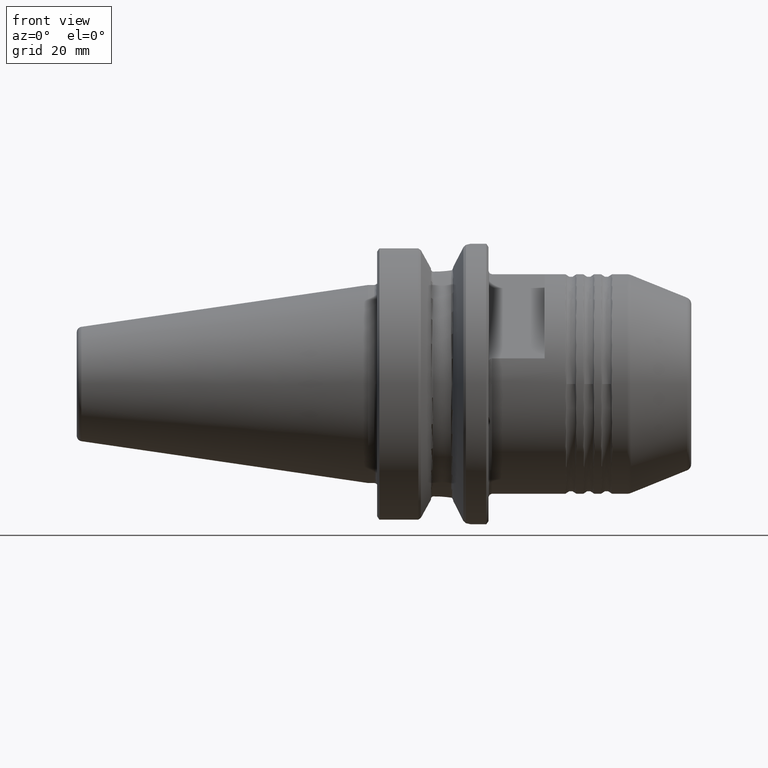
[diagram: clean part render]
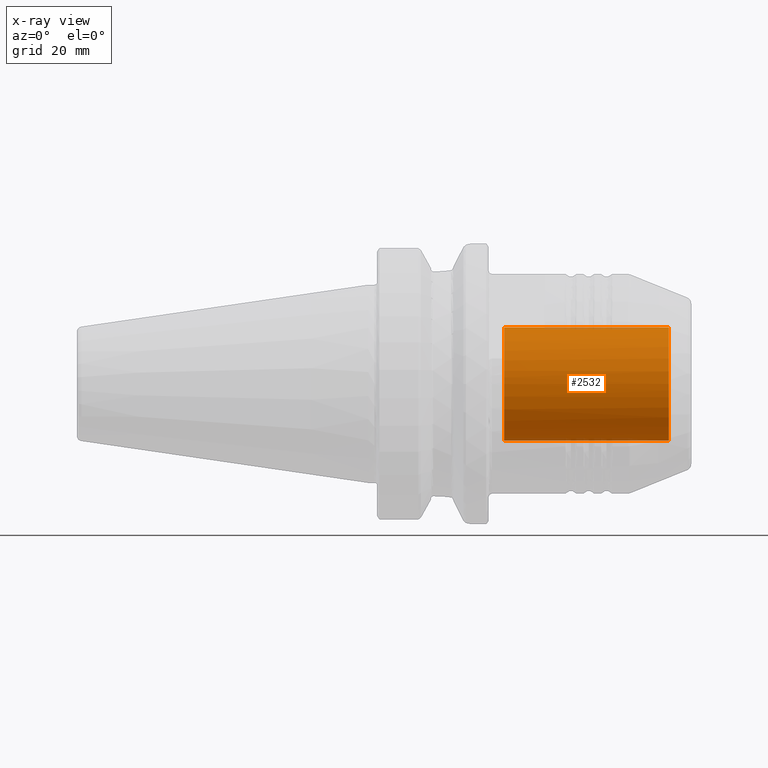
[diagram: x-ray — body ghosted, one internal face saturated and labeled with its STEP entity id]
A machine part, front view, then the same camera in x-ray: the body is ghosted and one INTERNAL B-rep face — a face not visible from any outside direction — is saturated and labeled: STEP entity #2532.
In plain terms, the highlighted cylindrical surface (partial cylindrical patch) has radius 12.7 mm, axis along (-1, 0, 0).
Its self-contained STEP definition (entity closure, byte-faithful):
#36 = CARTESIAN_POINT ( 'NONE',  ( 95.90000000000002000, -10.83106848551897300, -6.633192591996557800 ) ) ;
#54 = CARTESIAN_POINT ( 'NONE',  ( 95.90000000000002000, -7.132068221417887000, -10.50885895218373800 ) ) ;
#107 = CARTESIAN_POINT ( 'NONE',  ( 95.90000000000000600, -11.82806847958491800, -4.624903431777474900 ) ) ;
#131 = CARTESIAN_POINT ( 'NONE',  ( 95.90000000000002000, -11.02390383184137700, -6.312431398453354000 ) ) ;
#149 = CARTESIAN_POINT ( 'NONE',  ( 95.90000000000002000, -1.555301434917138400E-015, 12.69999999999999900 ) ) ;
#152 = CARTESIAN_POINT ( 'NONE',  ( 132.9000000000000100, -6.994446199021424200, 10.60049719727726900 ) ) ;
#163 = CARTESIAN_POINT ( 'NONE',  ( 95.90000000000002000, -12.62932605963016600, 1.546926850689214600 ) ) ;
#183 = CARTESIAN_POINT ( 'NONE',  ( 132.9000000000000300, -11.38468616588480100, 5.657192641834225100 ) ) ;
#214 = CARTESIAN_POINT ( 'NONE',  ( 132.8999999999999800, -4.873616416226203000, 11.72778495863649800 ) ) ;
#224 = CARTESIAN_POINT ( 'NONE',  ( 95.89999999999999100, -4.000026150511196500, 12.05679401544551900 ) ) ;
#235 = CARTESIAN_POINT ( 'NONE',  ( 132.9000000000000100, -1.555301434917138400E-015, 12.69999999999999900 ) ) ;
#244 = CARTESIAN_POINT ( 'NONE',  ( 95.90000000000000600, -10.19486177881685900, 7.579033105689978500 ) ) ;
#254 = CARTESIAN_POINT ( 'NONE',  ( 132.9000000000000100, -11.88264116176134200, 4.482816051323855100 ) ) ;
#350 = CARTESIAN_POINT ( 'NONE',  ( 132.9000000000000300, -4.578936615541845600, -11.84592605979621100 ) ) ;
#409 = CARTESIAN_POINT ( 'NONE',  ( 132.9000000000000300, -4.338380836673065800, -11.93681428037073500 ) ) ;
#483 = CARTESIAN_POINT ( 'NONE',  ( 132.9000000000000300, -11.18799267915777300, -6.036866101480827100 ) ) ;
#494 = CARTESIAN_POINT ( 'NONE',  ( 132.9000000000000100, -12.69999999999999900, -1.399771291425424700E-015 ) ) ;
#581 = VERTEX_POINT ( 'NONE', #1667 ) ;
#615 = CARTESIAN_POINT ( 'NONE',  ( 95.90000000000002000, -12.69999999999999900, -1.399771291425424700E-015 ) ) ;
#644 = CARTESIAN_POINT ( 'NONE',  ( 95.90000000000002000, -6.590192867226859300, -10.86477054354276600 ) ) ;
#677 = CARTESIAN_POINT ( 'NONE',  ( 95.89999999999999100, -7.039406618182418600, -10.57111110471039700 ) ) ;
#698 = CARTESIAN_POINT ( 'NONE',  ( 95.90000000000000600, -11.84590253891863100, -4.579018063052356700 ) ) ;
#721 = CARTESIAN_POINT ( 'NONE',  ( 95.90000000000002000, -10.68823493478029400, -6.859642423158714300 ) ) ;
#737 = CYLINDRICAL_SURFACE ( 'NONE', #4604, 12.69999999999999900 ) ;
#738 = CARTESIAN_POINT ( 'NONE',  ( 95.90000000000002000, -3.315458810186035200, 12.27177897075705600 ) ) ;
#763 = CARTESIAN_POINT ( 'NONE',  ( 132.8999999999999800, -3.709437484486292300, 12.15850117819078400 ) ) ;
#792 = CARTESIAN_POINT ( 'NONE',  ( 132.9000000000000100, -2.361554914212475400, 12.47852905997236700 ) ) ;
#800 = CARTESIAN_POINT ( 'NONE',  ( 95.90000000000002000, -2.143827559775149300, 12.51792512714411200 ) ) ;
#859 = CARTESIAN_POINT ( 'NONE',  ( 95.90000000000000600, -11.66594036817012100, 5.021664365381515600 ) ) ;
#870 = CARTESIAN_POINT ( 'NONE',  ( 95.90000000000002000, -3.014638071802558700, -12.34011596484074700 ) ) ;
#876 = CARTESIAN_POINT ( 'NONE',  ( 132.9000000000000100, -5.021903510278223200, 11.66581695748450700 ) ) ;
#922 = EDGE_CURVE ( 'NONE', #581, #1234, #5731, .T. ) ;
#967 = ORIENTED_EDGE ( 'NONE', *, *, #1190, .F. ) ;
#996 = CARTESIAN_POINT ( 'NONE',  ( 132.9000000000000100, -6.769260997546748400, -10.74610313845055200 ) ) ;
#1069 = CARTESIAN_POINT ( 'NONE',  ( 132.9000000000000300, -11.78936632275926900, -4.722651477237310900 ) ) ;
#1093 = CARTESIAN_POINT ( 'NONE',  ( 132.8999999999999800, -12.33998849685905300, -3.015079464762758100 ) ) ;
#1094 = CARTESIAN_POINT ( 'NONE',  ( 132.9000000000000100, -1.555301434917138400E-015, 12.69999999999999900 ) ) ;
#1190 = EDGE_CURVE ( 'NONE', #4441, #6610, #7115, .T. ) ;
#1230 = B_SPLINE_CURVE_WITH_KNOTS ( 'NONE', 3,
 ( #6286, #3924, #2826, #7493, #7418, #3402, #6233, #5621, #1591, #1544, #2199, #3899, #409, #6866, #350, #6213, #2721, #5091, #1562, #5652, #996, #2179, #6261, #2762, #4024, #6944, #5163, #4598, #5192, #1692, #7514, #6338, #483, #6369, #5775, #2282, #4574, #1069, #1661, #5753, #1093, #2257, #2847, #3436, #7577, #4641, #2857, #4663, #494 ),
 .UNSPECIFIED., .F., .F.,
 ( 4, 1, 1, 1, 1, 2, 2, 1, 1, 1, 2, 2, 1, 1, 2, 2, 2, 1, 1, 1, 2, 2, 1, 1, 1, 2, 2, 1, 1, 1, 1, 2, 2, 4 ),
 ( 0.5000000000000000000, 0.5312500000000002200, 0.5468750000000003300, 0.5546875000000003300, 0.5585937500000003300, 0.5605468750000003300, 0.5625000000000004400, 0.5937500000000003300, 0.6093750000000003300, 0.6171875000000003300, 0.6210937500000003300, 0.6250000000000003300, 0.6562500000000002200, 0.6718750000000003300, 0.6796875000000003300, 0.6875000000000003300, 0.7500000000000008900, 0.7812500000000013300, 0.7968750000000015500, 0.8046875000000015500, 0.8085937500000015500, 0.8125000000000015500, 0.8437500000000017800, 0.8593750000000017800, 0.8671875000000017800, 0.8710937500000017800, 0.8750000000000016700, 0.9062500000000013300, 0.9218750000000011100, 0.9296875000000011100, 0.9335937500000010000, 0.9355468750000008900, 0.9375000000000008900, 1.000000000000000000 ),
 .UNSPECIFIED. ) ;
#1234 = VERTEX_POINT ( 'NONE', #2673 ) ;
#1235 = CARTESIAN_POINT ( 'NONE',  ( 95.90000000000002000, -8.183713011899504500, -9.729115038165950600 ) ) ;
#1279 = CARTESIAN_POINT ( 'NONE',  ( 95.89999999999997700, -4.873472441234890000, -11.72785925690739400 ) ) ;
#1344 = CARTESIAN_POINT ( 'NONE',  ( 95.90000000000002000, -5.657739258740986300, 11.38440408431765700 ) ) ;
#1359 = CARTESIAN_POINT ( 'NONE',  ( 132.9000000000000100, -12.51793178252380100, 2.143718689744187300 ) ) ;
#1372 = CARTESIAN_POINT ( 'NONE',  ( 95.90000000000002000, -1.641396212223162200, 12.59617635286678800 ) ) ;
#1380 = CARTESIAN_POINT ( 'NONE',  ( 95.90000000000002000, -2.663971470896970400, -12.41824489877739000 ) ) ;
#1386 = CARTESIAN_POINT ( 'NONE',  ( 132.8999999999999800, -12.70000000000000100, 0.3883082977389040200 ) ) ;
#1400 = CARTESIAN_POINT ( 'NONE',  ( 95.90000000000000600, -0.9688703788794805800, 12.67346887607462600 ) ) ;
#1421 = CARTESIAN_POINT ( 'NONE',  ( 132.9000000000000300, -9.599934677961600800, 8.360525013439554300 ) ) ;
#1447 = CARTESIAN_POINT ( 'NONE',  ( 132.8999999999999800, -12.54595289560012200, 1.976334174862476800 ) ) ;
#1453 = CARTESIAN_POINT ( 'NONE',  ( 95.90000000000002000, -12.41824489877743400, 2.663971470896856700 ) ) ;
#1465 = CARTESIAN_POINT ( 'NONE',  ( 132.9000000000000300, -7.041104891627905500, 10.56957088324623200 ) ) ;
#1518 = ORIENTED_EDGE ( 'NONE', *, *, #5962, .F. ) ;
#1544 = CARTESIAN_POINT ( 'NONE',  ( 132.8999999999999800, -2.715762488424301200, -12.41308051808896100 ) ) ;
#1562 = CARTESIAN_POINT ( 'NONE',  ( 132.9000000000000100, -6.312021435780798700, -11.02411539301243900 ) ) ;
#1591 = CARTESIAN_POINT ( 'NONE',  ( 132.9000000000000100, -2.285628782959857800, -12.49265928269058900 ) ) ;
#1661 = CARTESIAN_POINT ( 'NONE',  ( 132.9000000000000100, -11.95987222936164300, -4.292013485023576700 ) ) ;
#1667 = CARTESIAN_POINT ( 'NONE',  ( 132.9000000000000100, 7.776507174585692200E-016, -12.69999999999999900 ) ) ;
#1668 = CARTESIAN_POINT ( 'NONE',  ( 134.7500000000000000, 0.0000000000000000000, 12.69999999999999900 ) ) ;
#1692 = CARTESIAN_POINT ( 'NONE',  ( 132.8999999999999800, -10.56957088324723100, -7.041104891627072400 ) ) ;
#1769 = EDGE_CURVE ( 'NONE', #581, #4441, #1230, .T. ) ;
#1827 = CARTESIAN_POINT ( 'NONE',  ( 95.90000000000004800, -12.54595289560012900, -1.976470280193973500 ) ) ;
#1933 = CARTESIAN_POINT ( 'NONE',  ( 95.90000000000004800, -9.290347868589927700, 8.670138076769614300 ) ) ;
#1958 = CARTESIAN_POINT ( 'NONE',  ( 132.9000000000000300, -10.15030190657993900, 7.683122614777455600 ) ) ;
#1970 = CARTESIAN_POINT ( 'NONE',  ( 95.90000000000000600, -9.729115038156470200, 8.183713011910219500 ) ) ;
#1981 = CARTESIAN_POINT ( 'NONE',  ( 95.89999999999999100, -4.722693514662089400, -11.78935418295149000 ) ) ;
#2005 = CARTESIAN_POINT ( 'NONE',  ( 132.8999999999999800, -2.412113500205442100, 12.46885562652316000 ) ) ;
#2017 = CARTESIAN_POINT ( 'NONE',  ( 95.90000000000002000, -11.78935418295148100, 4.722693514662110700 ) ) ;
#2043 = CARTESIAN_POINT ( 'NONE',  ( 95.90000000000003400, -12.34011596484082700, 3.014638071802361100 ) ) ;
#2060 = CARTESIAN_POINT ( 'NONE',  ( 95.90000000000004800, -1.546751597876339100, -12.62935848304221200 ) ) ;
#2098 = CARTESIAN_POINT ( 'NONE',  ( 95.90000000000002000, -12.69999999999999900, -1.399771291425424700E-015 ) ) ;
#2179 = CARTESIAN_POINT ( 'NONE',  ( 132.9000000000000300, -6.857869024644570800, -10.68978562821264000 ) ) ;
#2199 = CARTESIAN_POINT ( 'NONE',  ( 132.8999999999999800, -3.314870286242040300, -12.27194892806312200 ) ) ;
#2257 = CARTESIAN_POINT ( 'NONE',  ( 132.9000000000000100, -12.41817054245473500, -2.664228950123755700 ) ) ;
#2282 = CARTESIAN_POINT ( 'NONE',  ( 132.9000000000000300, -11.72778495863898800, -4.873616416221088900 ) ) ;
#2488 = CARTESIAN_POINT ( 'NONE',  ( 95.90000000000002000, -12.27177897075420500, -3.315458810188974600 ) ) ;
#2532 = ADVANCED_FACE ( 'NONE', ( #2790 ), #737, .F. ) ;
#2537 = CARTESIAN_POINT ( 'NONE',  ( 95.89999999999999100, -11.76853670128434000, 4.774369140110014300 ) ) ;
#2551 = CARTESIAN_POINT ( 'NONE',  ( 132.9000000000000100, -12.50530157638349100, 2.215399483589031200 ) ) ;
#2561 = CARTESIAN_POINT ( 'NONE',  ( 95.90000000000002000, -10.50885895218120000, 7.132068221420760200 ) ) ;
#2567 = ORIENTED_EDGE ( 'NONE', *, *, #3585, .F. ) ;
#2573 = CARTESIAN_POINT ( 'NONE',  ( 132.9000000000000100, -10.68978562821398800, 6.857869024643040500 ) ) ;
#2583 = CARTESIAN_POINT ( 'NONE',  ( 95.90000000000002000, -6.312431398467913900, 11.02390383183429600 ) ) ;
#2631 = CARTESIAN_POINT ( 'NONE',  ( 132.9000000000000300, -11.65041616421797200, 5.073685496195214000 ) ) ;
#2641 = CARTESIAN_POINT ( 'NONE',  ( 95.90000000000002000, -4.579018063051949900, 11.84590253891902700 ) ) ;
#2657 = ORIENTED_EDGE ( 'NONE', *, *, #922, .T. ) ;
#2673 = CARTESIAN_POINT ( 'NONE',  ( 95.90000000000002000, 7.776507174585692200E-016, -12.69999999999999900 ) ) ;
#2721 = CARTESIAN_POINT ( 'NONE',  ( 132.9000000000000100, -5.073685496189847700, -11.65041616422009500 ) ) ;
#2762 = CARTESIAN_POINT ( 'NONE',  ( 132.9000000000000100, -8.360525013431276500, -9.599934677968464700 ) ) ;
#2769 = VECTOR ( 'NONE', #7479, 1000.000000000000000 ) ;
#2790 = FACE_OUTER_BOUND ( 'NONE', #7435, .T. ) ;
#2826 = CARTESIAN_POINT ( 'NONE',  ( 132.9000000000000100, -0.9682525205360929000, -12.67352564284685100 ) ) ;
#2847 = CARTESIAN_POINT ( 'NONE',  ( 132.9000000000000600, -12.45412116181761200, -2.487885816610313100 ) ) ;
#2857 = CARTESIAN_POINT ( 'NONE',  ( 132.9000000000000300, -12.62932605963016500, -1.547282391147000600 ) ) ;
#2993 = CARTESIAN_POINT ( 'NONE',  ( 95.90000000000002000, -12.41298339962673000, -2.716098787822550000 ) ) ;
#3012 = CARTESIAN_POINT ( 'NONE',  ( 95.90000000000002000, -10.74572793279232200, -6.769250630017356900 ) ) ;
#3029 = CARTESIAN_POINT ( 'NONE',  ( 95.90000000000002000, -5.364204328882666000, -11.51514390593576700 ) ) ;
#3100 = CARTESIAN_POINT ( 'NONE',  ( 132.9000000000000100, -12.69999999999999900, -1.399771291425424700E-015 ) ) ;
#3118 = CARTESIAN_POINT ( 'NONE',  ( 95.90000000000002000, -1.976537398920276100, 12.54594047222469700 ) ) ;
#3135 = CARTESIAN_POINT ( 'NONE',  ( 132.9000000000000100, -12.05692148342514600, 3.999584757553003500 ) ) ;
#3163 = CARTESIAN_POINT ( 'NONE',  ( 95.90000000000002000, -2.334811364626671700, -12.48356004438574900 ) ) ;
#3166 = CARTESIAN_POINT ( 'NONE',  ( 132.9000000000000100, -11.93681428037078100, 4.338380836672950400 ) ) ;
#3177 = CARTESIAN_POINT ( 'NONE',  ( 95.90000000000002000, -6.633192592005051400, 10.83106848551484100 ) ) ;
#3192 = CARTESIAN_POINT ( 'NONE',  ( 132.9000000000000300, -12.49674340391682700, 2.263174362414761100 ) ) ;
#3212 = CARTESIAN_POINT ( 'NONE',  ( 132.9000000000000100, -12.69999999999999900, -1.399771291425424700E-015 ) ) ;
#3223 = CARTESIAN_POINT ( 'NONE',  ( 95.90000000000000600, -12.47854101009545900, 2.361513533622647400 ) ) ;
#3382 = EDGE_CURVE ( 'NONE', #6898, #1234, #4019, .T. ) ;
#3402 = CARTESIAN_POINT ( 'NONE',  ( 132.9000000000000100, -2.143682749225919200, -12.51793843185634900 ) ) ;
#3436 = CARTESIAN_POINT ( 'NONE',  ( 132.8999999999999800, -12.46885562652276700, -2.412113500205847600 ) ) ;
#3512 = VERTEX_POINT ( 'NONE', #149 ) ;
#3557 = CARTESIAN_POINT ( 'NONE',  ( 95.90000000000002000, -12.70000000000000300, -0.3884860679677971100 ) ) ;
#3584 = CARTESIAN_POINT ( 'NONE',  ( 95.90000000000002000, -12.67349727236131000, -0.9687169646479251200 ) ) ;
#3585 = EDGE_CURVE ( 'NONE', #6610, #3512, #6805, .T. ) ;
#3616 = CARTESIAN_POINT ( 'NONE',  ( 95.90000000000002000, -5.021664365377406900, -11.66594036817175500 ) ) ;
#3643 = CARTESIAN_POINT ( 'NONE',  ( 95.89999999999999100, -11.88259639622012100, -4.482971064327802700 ) ) ;
#3655 = CARTESIAN_POINT ( 'NONE',  ( 95.90000000000002000, -12.69999999999999900, -1.399771291425424700E-015 ) ) ;
#3691 = CARTESIAN_POINT ( 'NONE',  ( 95.90000000000000600, -3.708848960542299200, -12.15867113549685100 ) ) ;
#3698 = CARTESIAN_POINT ( 'NONE',  ( 132.9000000000000300, -11.02411539300964400, 6.312021435787842800 ) ) ;
#3708 = CARTESIAN_POINT ( 'NONE',  ( 95.90000000000002000, -12.48356105761737700, 2.334805887976271900 ) ) ;
#3720 = CARTESIAN_POINT ( 'NONE',  ( 95.89999999999999100, -2.412032709530094600, -12.46887895771584500 ) ) ;
#3727 = CARTESIAN_POINT ( 'NONE',  ( 132.8999999999999800, -6.590505219750378200, 10.86460935407370000 ) ) ;
#3738 = CARTESIAN_POINT ( 'NONE',  ( 95.90000000000000600, -2.716098787820868700, 12.41298339962836100 ) ) ;
#3750 = CARTESIAN_POINT ( 'NONE',  ( 132.9000000000000300, -4.774444787985505200, 11.76849766321031700 ) ) ;
#3768 = CARTESIAN_POINT ( 'NONE',  ( 95.90000000000002000, -0.7771474664859527900, -12.70003245289907100 ) ) ;
#3772 = CARTESIAN_POINT ( 'NONE',  ( 132.9000000000000300, -0.7764413426642854400, 12.69996757658795700 ) ) ;
#3787 = CARTESIAN_POINT ( 'NONE',  ( 95.90000000000002000, -6.859642423161401000, 10.68823493477899000 ) ) ;
#3863 = DIRECTION ( 'NONE',  ( 0.0000000000000000000, 0.0000000000000000000, 1.000000000000000000 ) ) ;
#3899 = CARTESIAN_POINT ( 'NONE',  ( 132.9000000000000300, -3.999584757553202900, -12.05692148342507300 ) ) ;
#3924 = CARTESIAN_POINT ( 'NONE',  ( 132.8999999999999800, -0.3882206713324646800, -12.70001621170602100 ) ) ;
#4019 = B_SPLINE_CURVE_WITH_KNOTS ( 'NONE', 3,
 ( #615, #3557, #3584, #7120, #1827, #6482, #6535, #5986, #7137, #2993, #2488, #4202, #7069, #3643, #698, #107, #6575, #7167, #131, #36, #3012, #721, #4159, #4787, #4186, #4738, #1235, #7097, #5321, #54, #677, #644, #5351, #3029, #3616, #1279, #4225, #1981, #7282, #3691, #870, #1380, #6113, #3720, #7199, #3163, #2060, #3768, #4863 ),
 .UNSPECIFIED., .F., .F.,
 ( 4, 1, 1, 1, 1, 2, 2, 1, 1, 1, 2, 2, 1, 1, 1, 2, 2, 2, 1, 1, 2, 2, 1, 1, 1, 2, 2, 1, 1, 1, 1, 2, 2, 4 ),
 ( 0.0000000000000000000, 0.03124999999999943100, 0.04687499999999914000, 0.05468749999999900100, 0.05859374999999893800, 0.06054687499999892400, 0.06249999999999890400, 0.09374999999999859800, 0.1093749999999984200, 0.1171874999999983300, 0.1210937499999983500, 0.1249999999999983600, 0.1562499999999987000, 0.1718749999999989200, 0.1796874999999990000, 0.1835937499999990300, 0.1874999999999990300, 0.2499999999999988900, 0.2812499999999988900, 0.2968749999999989500, 0.3046874999999988900, 0.3124999999999988300, 0.3437499999999989500, 0.3593749999999990000, 0.3671874999999990600, 0.3710937499999990600, 0.3749999999999991100, 0.4062499999999996100, 0.4218749999999998900, 0.4296875000000000000, 0.4335937500000000600, 0.4355468750000000600, 0.4375000000000000600, 0.5000000000000000000 ),
 .UNSPECIFIED. ) ;
#4024 = CARTESIAN_POINT ( 'NONE',  ( 132.9000000000000100, -9.290121674888091300, -8.670416842619500700 ) ) ;
#4159 = CARTESIAN_POINT ( 'NONE',  ( 95.90000000000000600, -10.65984258455815800, -6.903681600585938000 ) ) ;
#4186 = CARTESIAN_POINT ( 'NONE',  ( 95.90000000000002000, -9.600492209680485400, -8.360072626016776800 ) ) ;
#4202 = CARTESIAN_POINT ( 'NONE',  ( 95.90000000000002000, -12.05679401544338000, -4.000026150513404500 ) ) ;
#4225 = CARTESIAN_POINT ( 'NONE',  ( 95.89999999999999100, -4.774369140108713200, -11.76853670128485700 ) ) ;
#4310 = CARTESIAN_POINT ( 'NONE',  ( 132.9000000000000100, -4.292013485021897200, 11.95987222936327400 ) ) ;
#4321 = CARTESIAN_POINT ( 'NONE',  ( 95.89999999999999100, -2.263207023424045300, 12.49674140730292000 ) ) ;
#4355 = CARTESIAN_POINT ( 'NONE',  ( 95.90000000000002000, -11.18827476071546400, 6.036319484593477100 ) ) ;
#4372 = CARTESIAN_POINT ( 'NONE',  ( 132.9000000000000100, -5.364614291569780300, 11.51493234475762200 ) ) ;
#4383 = CARTESIAN_POINT ( 'NONE',  ( 95.90000000000002000, -10.57111110471093000, 7.039406618181079300 ) ) ;
#4441 = VERTEX_POINT ( 'NONE', #3100 ) ;
#4527 = ORIENTED_EDGE ( 'NONE', *, *, #3382, .F. ) ;
#4574 = CARTESIAN_POINT ( 'NONE',  ( 132.8999999999999800, -11.76849766321162400, -4.774444787982818500 ) ) ;
#4598 = CARTESIAN_POINT ( 'NONE',  ( 132.9000000000000300, -10.41602489696894900, -7.267610583379268800 ) ) ;
#4604 = AXIS2_PLACEMENT_3D ( 'NONE', #7210, #6803, #3863 ) ;
#4641 = CARTESIAN_POINT ( 'NONE',  ( 132.8999999999999800, -12.48356105761738100, -2.334794777336966800 ) ) ;
#4663 = CARTESIAN_POINT ( 'NONE',  ( 132.9000000000000300, -12.70000000000000100, -0.7769721359355976600 ) ) ;
#4682 = ORIENTED_EDGE ( 'NONE', *, *, #1769, .F. ) ;
#4738 = CARTESIAN_POINT ( 'NONE',  ( 95.90000000000003400, -8.670138076763485900, -9.290347868595343800 ) ) ;
#4787 = CARTESIAN_POINT ( 'NONE',  ( 95.90000000000003400, -10.14984951917627100, -7.683680146477224000 ) ) ;
#4851 = CARTESIAN_POINT ( 'NONE',  ( 95.90000000000000600, -6.769250630022469300, 10.74572793278983700 ) ) ;
#4863 = CARTESIAN_POINT ( 'NONE',  ( 95.90000000000002000, 7.776507174585692200E-016, -12.69999999999999900 ) ) ;
#4868 = CARTESIAN_POINT ( 'NONE',  ( 132.9000000000000100, -3.015079464760554100, 12.33998849686119900 ) ) ;
#4878 = CARTESIAN_POINT ( 'NONE',  ( 95.90000000000002000, -5.073997848713363000, 11.65025497475102700 ) ) ;
#4897 = CARTESIAN_POINT ( 'NONE',  ( 132.8999999999999800, -2.334789298257264400, 12.48356207177047300 ) ) ;
#4923 = CARTESIAN_POINT ( 'NONE',  ( 132.9000000000000100, -7.267610583381886300, 10.41602489696578400 ) ) ;
#4944 = CARTESIAN_POINT ( 'NONE',  ( 132.9000000000000100, -12.59619765008180200, 1.641047828124075000 ) ) ;
#4956 = CARTESIAN_POINT ( 'NONE',  ( 95.90000000000002000, -12.15867113549695100, 3.708848960542037600 ) ) ;
#4973 = CARTESIAN_POINT ( 'NONE',  ( 132.9000000000000100, -12.49265928269058200, 2.285628782959871600 ) ) ;
#5091 = CARTESIAN_POINT ( 'NONE',  ( 132.8999999999999800, -5.657192641824831700, -11.38468616588851200 ) ) ;
#5163 = CARTESIAN_POINT ( 'NONE',  ( 132.9000000000000300, -10.19456489958321100, -7.579398985867951100 ) ) ;
#5192 = CARTESIAN_POINT ( 'NONE',  ( 132.9000000000000300, -10.50847999881639800, -7.131975381737917500 ) ) ;
#5321 = CARTESIAN_POINT ( 'NONE',  ( 95.90000000000002000, -7.311916575043781600, -10.38457860542576600 ) ) ;
#5351 = CARTESIAN_POINT ( 'NONE',  ( 95.90000000000002000, -6.036319484584084600, -11.18827476071918200 ) ) ;
#5442 = CARTESIAN_POINT ( 'NONE',  ( 95.90000000000000600, -6.903681600585508200, 10.65984258455867800 ) ) ;
#5466 = CARTESIAN_POINT ( 'NONE',  ( 95.90000000000003400, -4.338638315898562900, 11.93673992404933600 ) ) ;
#5479 = CARTESIAN_POINT ( 'NONE',  ( 132.8999999999999800, -11.82804833090222700, 4.624942475840856400 ) ) ;
#5489 = CARTESIAN_POINT ( 'NONE',  ( 95.90000000000000600, -2.285607764247572100, 12.49266535259437900 ) ) ;
#5503 = CARTESIAN_POINT ( 'NONE',  ( 132.9000000000000300, -2.664228950122467900, 12.41817054245598900 ) ) ;
#5516 = CARTESIAN_POINT ( 'NONE',  ( 95.90000000000002000, -7.683680146484088700, 10.14984951916799700 ) ) ;
#5534 = CARTESIAN_POINT ( 'NONE',  ( 132.8999999999999800, -12.67349727236130600, 0.9684058667473619500 ) ) ;
#5550 = CARTESIAN_POINT ( 'NONE',  ( 95.90000000000004800, -12.45416099556191200, 2.487747881310188100 ) ) ;
#5564 = CARTESIAN_POINT ( 'NONE',  ( 132.9000000000000100, -11.84592605979621600, 4.578936615541807400 ) ) ;
#5621 = CARTESIAN_POINT ( 'NONE',  ( 132.9000000000000300, -2.263163580259277100, -12.49674539871659800 ) ) ;
#5652 = CARTESIAN_POINT ( 'NONE',  ( 132.9000000000000100, -6.587106016915173600, -10.85875239574642800 ) ) ;
#5731 = LINE ( 'NONE', #5815, #7298 ) ;
#5753 = CARTESIAN_POINT ( 'NONE',  ( 132.9000000000000300, -12.15850117818793500, -3.709437484489230800 ) ) ;
#5775 = CARTESIAN_POINT ( 'NONE',  ( 132.9000000000000300, -11.66581695748863400, -5.021903510269731400 ) ) ;
#5815 = CARTESIAN_POINT ( 'NONE',  ( 134.7500000000000000, 1.555301434917138400E-015, -12.69999999999999900 ) ) ;
#5962 = EDGE_CURVE ( 'NONE', #3512, #6898, #7516, .T. ) ;
#5986 = CARTESIAN_POINT ( 'NONE',  ( 95.90000000000002000, -12.49674340391682900, -2.263196236485894600 ) ) ;
#6018 = CARTESIAN_POINT ( 'NONE',  ( 95.90000000000002000, -11.51514390593297700, 5.364204328889704800 ) ) ;
#6033 = CARTESIAN_POINT ( 'NONE',  ( 132.9000000000000100, -7.131975381739500200, 10.50847999881449000 ) ) ;
#6042 = CARTESIAN_POINT ( 'NONE',  ( 95.90000000000003400, -10.38457860542119700, 7.311916575048948100 ) ) ;
#6060 = CARTESIAN_POINT ( 'NONE',  ( 132.9000000000000100, -2.487885816609618900, 12.45412116181827700 ) ) ;
#6076 = CARTESIAN_POINT ( 'NONE',  ( 95.90000000000000600, -4.482971064327031700, 11.88259639622088300 ) ) ;
#6095 = CARTESIAN_POINT ( 'NONE',  ( 132.9000000000000300, -12.27194892806322500, 3.314870286241780000 ) ) ;
#6103 = CARTESIAN_POINT ( 'NONE',  ( 95.90000000000002000, -2.215463250321450400, 12.50529767823252800 ) ) ;
#6113 = CARTESIAN_POINT ( 'NONE',  ( 95.90000000000000600, -2.487747881310246700, -12.45416099556188200 ) ) ;
#6117 = CARTESIAN_POINT ( 'NONE',  ( 132.9000000000000100, -4.722651477237519700, 11.78936632275906300 ) ) ;
#6130 = CARTESIAN_POINT ( 'NONE',  ( 95.90000000000002000, -12.46887895771586400, 2.412032709530061800 ) ) ;
#6142 = CARTESIAN_POINT ( 'NONE',  ( 132.9000000000000300, -10.74610313844955700, 6.769260997549263700 ) ) ;
#6213 = CARTESIAN_POINT ( 'NONE',  ( 132.9000000000000300, -4.624942475841527800, -11.82804833090197000 ) ) ;
#6233 = CARTESIAN_POINT ( 'NONE',  ( 132.9000000000000300, -2.215378432714043600, -12.50530547099255700 ) ) ;
#6261 = CARTESIAN_POINT ( 'NONE',  ( 132.8999999999999500, -7.683122614765206700, -10.15030190659076800 ) ) ;
#6286 = CARTESIAN_POINT ( 'NONE',  ( 132.9000000000000100, 7.776507174585692200E-016, -12.69999999999999900 ) ) ;
#6338 = CARTESIAN_POINT ( 'NONE',  ( 132.8999999999999800, -10.86460935407909800, -6.590505219739281300 ) ) ;
#6369 = CARTESIAN_POINT ( 'NONE',  ( 132.9000000000000300, -11.51493234476471300, -5.364614291555218600 ) ) ;
#6482 = CARTESIAN_POINT ( 'NONE',  ( 95.90000000000002000, -12.51793178252380300, -2.143791603314632700 ) ) ;
#6535 = CARTESIAN_POINT ( 'NONE',  ( 95.89999999999997700, -12.50530157638349000, -2.215442190108862800 ) ) ;
#6575 = CARTESIAN_POINT ( 'NONE',  ( 95.90000000000000600, -11.65025497475642500, -5.073997848702267900 ) ) ;
#6603 = CARTESIAN_POINT ( 'NONE',  ( 132.9000000000000300, -1.547457721697354400, 12.62929360673109600 ) ) ;
#6610 = VERTEX_POINT ( 'NONE', #1094 ) ;
#6617 = CARTESIAN_POINT ( 'NONE',  ( 95.90000000000002000, -11.72785925690641100, 4.873472441237368000 ) ) ;
#6637 = CARTESIAN_POINT ( 'NONE',  ( 132.9000000000000100, -6.036866101500240900, 11.18799267914831900 ) ) ;
#6660 = CARTESIAN_POINT ( 'NONE',  ( 132.8999999999999800, -8.184200852153528800, 9.728719199171019100 ) ) ;
#6671 = CARTESIAN_POINT ( 'NONE',  ( 95.90000000000000600, -0.3885737332429720100, 12.69998377355046200 ) ) ;
#6696 = CARTESIAN_POINT ( 'NONE',  ( 95.90000000000002000, -11.95996934782394000, 4.291677185625180100 ) ) ;
#6715 = CARTESIAN_POINT ( 'NONE',  ( 132.9000000000000100, -7.579398985872456900, 10.19456489957777400 ) ) ;
#6734 = CARTESIAN_POINT ( 'NONE',  ( 95.90000000000002000, -4.624903431776085800, 11.82806847958559400 ) ) ;
#6803 = DIRECTION ( 'NONE',  ( -1.000000000000000000, 0.0000000000000000000, 0.0000000000000000000 ) ) ;
#6805 = LINE ( 'NONE', #1668, #2769 ) ;
#6866 = CARTESIAN_POINT ( 'NONE',  ( 132.9000000000000100, -4.482816051323926100, -11.88264116176131500 ) ) ;
#6898 = VERTEX_POINT ( 'NONE', #3655 ) ;
#6944 = CARTESIAN_POINT ( 'NONE',  ( 132.9000000000000300, -9.728719199178256000, -8.184200852147526500 ) ) ;
#7069 = CARTESIAN_POINT ( 'NONE',  ( 95.90000000000002000, -11.93673992404808500, -4.338638315899849800 ) ) ;
#7097 = CARTESIAN_POINT ( 'NONE',  ( 95.90000000000002000, -7.579033105681942200, -10.19486177882397700 ) ) ;
#7115 = B_SPLINE_CURVE_WITH_KNOTS ( 'NONE', 3,
 ( #3212, #1386, #5534, #4944, #1447, #1359, #2551, #3192, #4973, #7226, #6095, #3135, #3166, #254, #5564, #5479, #2631, #183, #3698, #7248, #6142, #2573, #1958, #1421, #7285, #6660, #6715, #4923, #6033, #1465, #152, #3727, #6637, #4372, #876, #214, #3750, #6117, #4310, #763, #4868, #5503, #6060, #2005, #792, #4897, #6603, #3772, #235 ),
 .UNSPECIFIED., .F., .F.,
 ( 4, 1, 1, 1, 1, 2, 2, 1, 1, 1, 2, 2, 1, 1, 2, 2, 2, 1, 1, 1, 2, 2, 1, 1, 1, 2, 2, 1, 1, 1, 1, 2, 2, 4 ),
 ( 0.0000000000000000000, 0.03124999999999962500, 0.04687499999999943100, 0.05468749999999934800, 0.05859374999999931300, 0.06054687499999930600, 0.06249999999999930600, 0.09374999999999932000, 0.1093749999999993300, 0.1171874999999993300, 0.1210937499999993200, 0.1249999999999993300, 0.1562499999999994200, 0.1718749999999995000, 0.1796874999999995300, 0.1874999999999995800, 0.2499999999999995000, 0.2812499999999994400, 0.2968749999999994400, 0.3046874999999993900, 0.3085937499999993900, 0.3124999999999993900, 0.3437499999999993300, 0.3593749999999992800, 0.3671874999999992800, 0.3710937499999992800, 0.3749999999999992800, 0.4062499999999994400, 0.4218749999999995600, 0.4296874999999995600, 0.4335937499999995600, 0.4355468749999995600, 0.4374999999999995000, 0.5000000000000000000 ),
 .UNSPECIFIED. ) ;
#7120 = CARTESIAN_POINT ( 'NONE',  ( 95.90000000000002000, -12.59619765008180400, -1.641281151549497800 ) ) ;
#7137 = CARTESIAN_POINT ( 'NONE',  ( 95.90000000000002000, -12.49266535259447900, -2.285607764247471700 ) ) ;
#7167 = CARTESIAN_POINT ( 'NONE',  ( 95.90000000000002000, -11.38440408432709800, -5.657739258721575100 ) ) ;
#7199 = CARTESIAN_POINT ( 'NONE',  ( 95.90000000000000600, -2.361513533622662900, -12.47854101009544800 ) ) ;
#7210 = CARTESIAN_POINT ( 'NONE',  ( 134.7500000000000000, 0.0000000000000000000, 0.0000000000000000000 ) ) ;
#7212 = CARTESIAN_POINT ( 'NONE',  ( 95.89999999999999100, -8.360072626027607300, 9.600492209668233900 ) ) ;
#7226 = CARTESIAN_POINT ( 'NONE',  ( 132.9000000000000100, -12.41308051808902800, 2.715762488424151600 ) ) ;
#7235 = CARTESIAN_POINT ( 'NONE',  ( 95.90000000000002000, -1.555301434917138400E-015, 12.69999999999999900 ) ) ;
#7248 = CARTESIAN_POINT ( 'NONE',  ( 132.9000000000000100, -10.85875239574463600, 6.587106016919698900 ) ) ;
#7265 = CARTESIAN_POINT ( 'NONE',  ( 95.90000000000003400, -10.86477054354064000, 6.590192867232225600 ) ) ;
#7282 = CARTESIAN_POINT ( 'NONE',  ( 95.90000000000002000, -4.291677185625330200, -11.95996934782388300 ) ) ;
#7285 = CARTESIAN_POINT ( 'NONE',  ( 132.9000000000000100, -8.670416842622927300, 9.290121674883954100 ) ) ;
#7298 = VECTOR ( 'NONE', #7454, 1000.000000000000000 ) ;
#7415 = CARTESIAN_POINT ( 'NONE',  ( 95.90000000000002000, -12.69999999999999900, 0.7766165954778115900 ) ) ;
#7418 = CARTESIAN_POINT ( 'NONE',  ( 132.9000000000000100, -1.976267085895044400, -12.54596530768754700 ) ) ;
#7435 = EDGE_LOOP ( 'NONE', ( #4682, #2657, #4527, #1518, #2567, #967 ) ) ;
#7454 = DIRECTION ( 'NONE',  ( -1.000000000000000000, 0.0000000000000000000, 0.0000000000000000000 ) ) ;
#7479 = DIRECTION ( 'NONE',  ( -1.000000000000000000, 0.0000000000000000000, 0.0000000000000000000 ) ) ;
#7493 = CARTESIAN_POINT ( 'NONE',  ( 132.9000000000000100, -1.640932818465621300, -12.59621892794595700 ) ) ;
#7514 = CARTESIAN_POINT ( 'NONE',  ( 132.8999999999999800, -10.60049719727658900, -6.994446199022811500 ) ) ;
#7516 = B_SPLINE_CURVE_WITH_KNOTS ( 'NONE', 3,
 ( #7235, #6671, #1400, #1372, #3118, #800, #6103, #4321, #5489, #3738, #738, #224, #5466, #6076, #2641, #6734, #4878, #1344, #2583, #3177, #4851, #3787, #5442, #5516, #7212, #1933, #1970, #244, #6042, #2561, #4383, #7265, #4355, #6018, #859, #6617, #2537, #2017, #6696, #4956, #2043, #1453, #5550, #6130, #3223, #3708, #163, #7415, #2098 ),
 .UNSPECIFIED., .F., .F.,
 ( 4, 1, 1, 1, 1, 2, 2, 1, 1, 1, 2, 2, 1, 1, 1, 2, 2, 2, 1, 1, 2, 2, 1, 1, 1, 2, 2, 1, 1, 1, 1, 2, 2, 4 ),
 ( 0.5000000000000000000, 0.5312499999999997800, 0.5468749999999996700, 0.5546874999999996700, 0.5585937499999995600, 0.5605468749999995600, 0.5624999999999995600, 0.5937499999999991100, 0.6093749999999988900, 0.6171874999999988900, 0.6210937499999987800, 0.6249999999999986700, 0.6562499999999986700, 0.6718749999999986700, 0.6796874999999986700, 0.6835937499999986700, 0.6874999999999986700, 0.7499999999999991100, 0.7812499999999993300, 0.7968749999999993300, 0.8046874999999994400, 0.8124999999999995600, 0.8437499999999998900, 0.8593750000000000000, 0.8671875000000001100, 0.8710937500000000000, 0.8750000000000000000, 0.9062499999999996700, 0.9218749999999995600, 0.9296874999999994400, 0.9335937499999994400, 0.9355468749999994400, 0.9374999999999993300, 1.000000000000000000 ),
 .UNSPECIFIED. ) ;
#7577 = CARTESIAN_POINT ( 'NONE',  ( 132.8999999999999500, -12.47852905997216200, -2.361554914212684600 ) ) ;